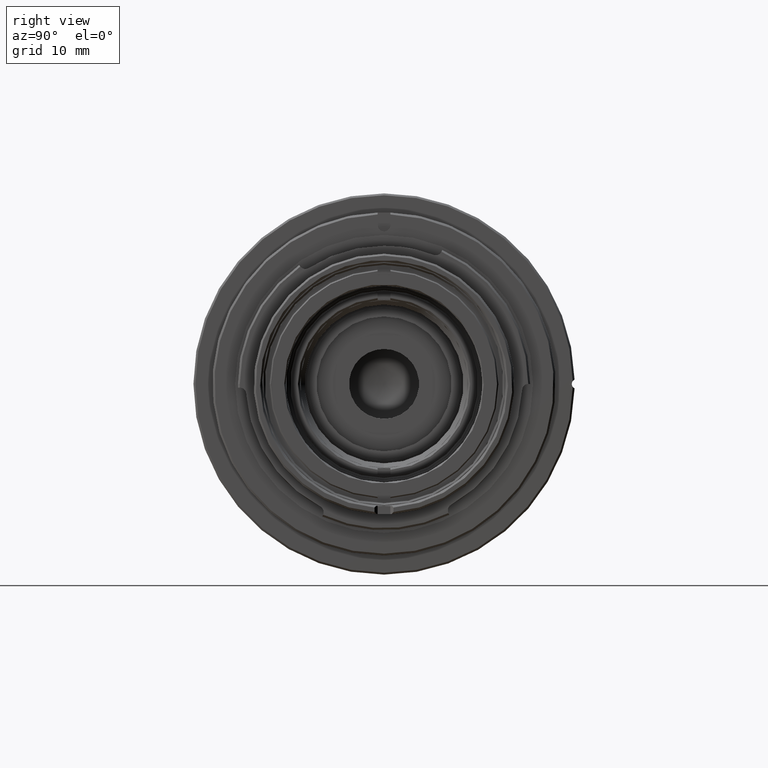
[diagram: clean part render]
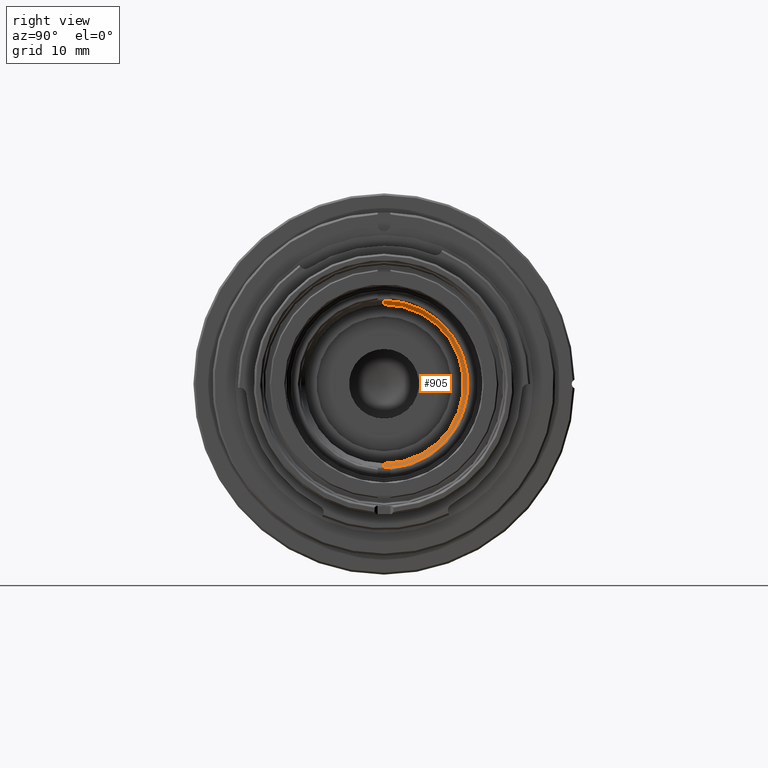
[diagram: same view with one face highlighted and labeled with its STEP entity id]
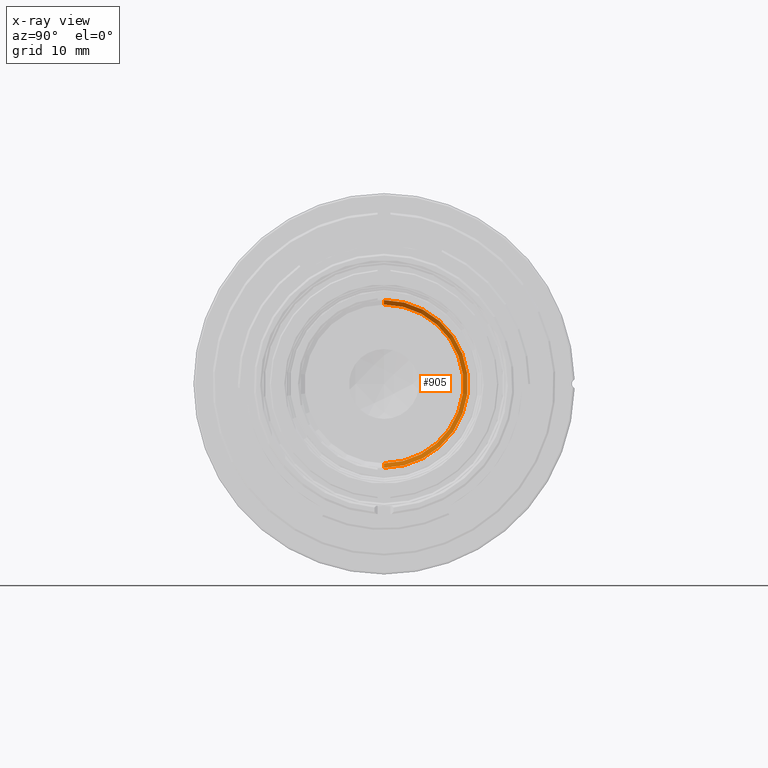
[diagram: x-ray of the same camera — body ghosted, the highlighted face saturated]
A machine part, right view. The second image highlights one B-rep face of the part: STEP entity #905.
The next image is the same camera in x-ray: the body ghosted, the highlighted face saturated — about 0% of this face is hidden behind the body in this view.
In plain terms, the highlighted conical surface has half-angle 45 deg.
Its self-contained STEP definition (entity closure, byte-faithful):
#48 = ORIENTED_EDGE ( 'NONE', *, *, #25301, .T. ) ;
#133 = DIRECTION ( 'NONE',  ( 0.7071067811865559000, 0.0000000000000000000, -0.7071067811865392500 ) ) ;
#894 = ORIENTED_EDGE ( 'NONE', *, *, #7555, .T. ) ;
#905 = ADVANCED_FACE ( 'NONE', ( #2797 ), #14309, .F. ) ;
#984 = EDGE_CURVE ( 'NONE', #59119, #10298, #8504, .T. ) ;
#2797 = FACE_OUTER_BOUND ( 'NONE', #40635, .T. ) ;
#5384 = CARTESIAN_POINT ( 'NONE',  ( -20.53314247734853700, 1.827964862713625200E-013, -12.50000000000000000 ) ) ;
#7014 = LINE ( 'NONE', #31631, #54736 ) ;
#7555 = EDGE_CURVE ( 'NONE', #59119, #29793, #12339, .T. ) ;
#8504 = LINE ( 'NONE', #54242, #46158 ) ;
#10298 = VERTEX_POINT ( 'NONE', #47892 ) ;
#12339 = CIRCLE ( 'NONE', #42139, 12.50000000000000000 ) ;
#14309 = CONICAL_SURFACE ( 'NONE', #55478, 13.19999999999998900, 0.7853981633974365100 ) ;
#18179 = EDGE_CURVE ( 'NONE', #10298, #46819, #32043, .T. ) ;
#18332 = DIRECTION ( 'NONE',  ( 0.0000000000000000000, 0.0000000000000000000, -1.000000000000000000 ) ) ;
#21742 = ORIENTED_EDGE ( 'NONE', *, *, #984, .F. ) ;
#22086 = CARTESIAN_POINT ( 'NONE',  ( -19.83314247734853500, 1.827964862713625200E-013, 6.708764282121120600E-016 ) ) ;
#22375 = CARTESIAN_POINT ( 'NONE',  ( -19.83314247734853500, 1.827964862713625200E-013, 6.708764282121120600E-016 ) ) ;
#24340 = DIRECTION ( 'NONE',  ( 0.0000000000000000000, 0.0000000000000000000, 1.000000000000000000 ) ) ;
#25301 = EDGE_CURVE ( 'NONE', #29793, #46819, #7014, .T. ) ;
#28780 = CARTESIAN_POINT ( 'NONE',  ( -20.53314247734853700, 1.827964862713625200E-013, 6.708764282121120600E-016 ) ) ;
#29793 = VERTEX_POINT ( 'NONE', #5384 ) ;
#31381 = DIRECTION ( 'NONE',  ( -1.000000000000000000, -0.0000000000000000000, -0.0000000000000000000 ) ) ;
#31631 = CARTESIAN_POINT ( 'NONE',  ( -19.83314247734853500, 1.827964862713625200E-013, -13.19999999999998900 ) ) ;
#32043 = CIRCLE ( 'NONE', #42843, 13.19999999999998900 ) ;
#34491 = CARTESIAN_POINT ( 'NONE',  ( -20.53314247734853700, 1.843701574082668600E-013, 12.50000000000000000 ) ) ;
#40536 = DIRECTION ( 'NONE',  ( 0.7071067811865559000, 8.659560562354831800E-017, 0.7071067811865392500 ) ) ;
#40635 = EDGE_LOOP ( 'NONE', ( #21742, #894, #48, #57905 ) ) ;
#42139 = AXIS2_PLACEMENT_3D ( 'NONE', #28780, #51615, #24340 ) ;
#42843 = AXIS2_PLACEMENT_3D ( 'NONE', #22086, #31381, #49597 ) ;
#46158 = VECTOR ( 'NONE', #40536, 999.9999999999998900 ) ;
#46819 = VERTEX_POINT ( 'NONE', #49171 ) ;
#47892 = CARTESIAN_POINT ( 'NONE',  ( -19.83314247734853500, 1.844130200462370200E-013, 13.19999999999998900 ) ) ;
#49171 = CARTESIAN_POINT ( 'NONE',  ( -19.83314247734853500, 1.827964862713625200E-013, -13.19999999999998900 ) ) ;
#49597 = DIRECTION ( 'NONE',  ( 0.0000000000000000000, 0.0000000000000000000, -1.000000000000000000 ) ) ;
#50472 = DIRECTION ( 'NONE',  ( 1.000000000000000000, 0.0000000000000000000, 0.0000000000000000000 ) ) ;
#51615 = DIRECTION ( 'NONE',  ( -1.000000000000000000, -0.0000000000000000000, -0.0000000000000000000 ) ) ;
#54242 = CARTESIAN_POINT ( 'NONE',  ( -19.83314247734853500, 1.844130200462370200E-013, 13.19999999999998900 ) ) ;
#54736 = VECTOR ( 'NONE', #133, 999.9999999999998900 ) ;
#55478 = AXIS2_PLACEMENT_3D ( 'NONE', #22375, #50472, #18332 ) ;
#57905 = ORIENTED_EDGE ( 'NONE', *, *, #18179, .F. ) ;
#59119 = VERTEX_POINT ( 'NONE', #34491 ) ;